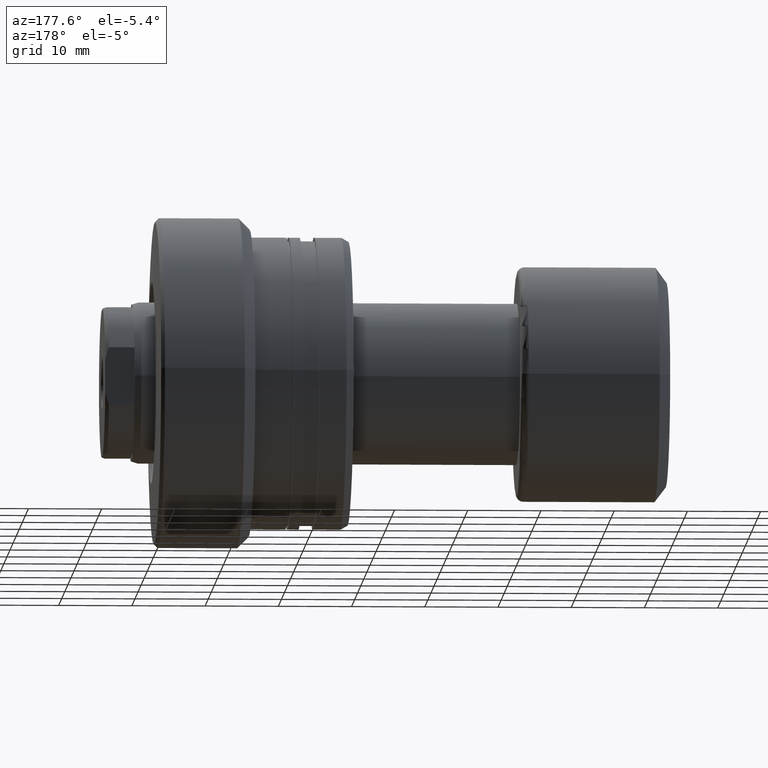
[diagram: clean part render]
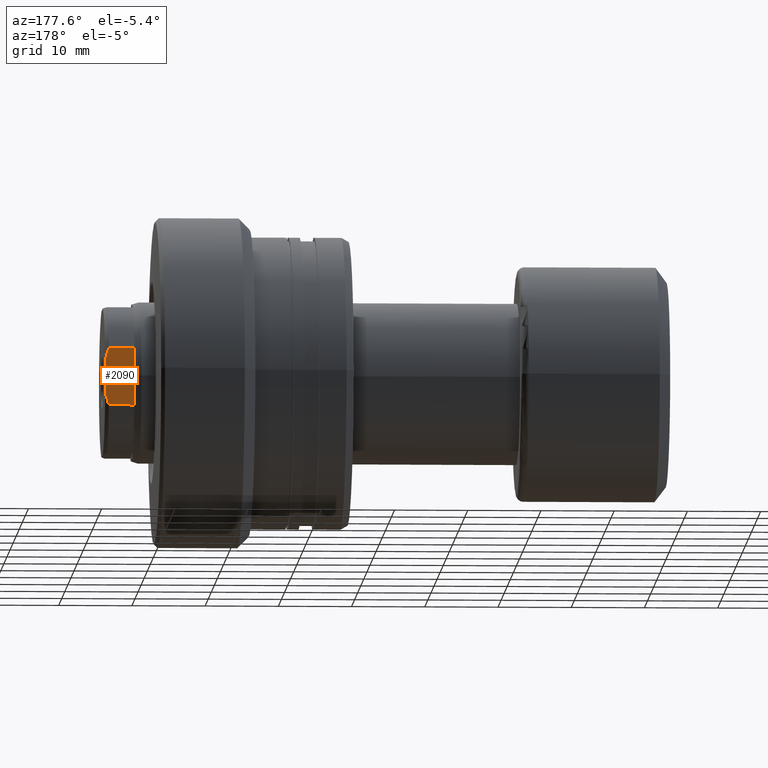
[diagram: same view with one face highlighted and labeled with its STEP entity id]
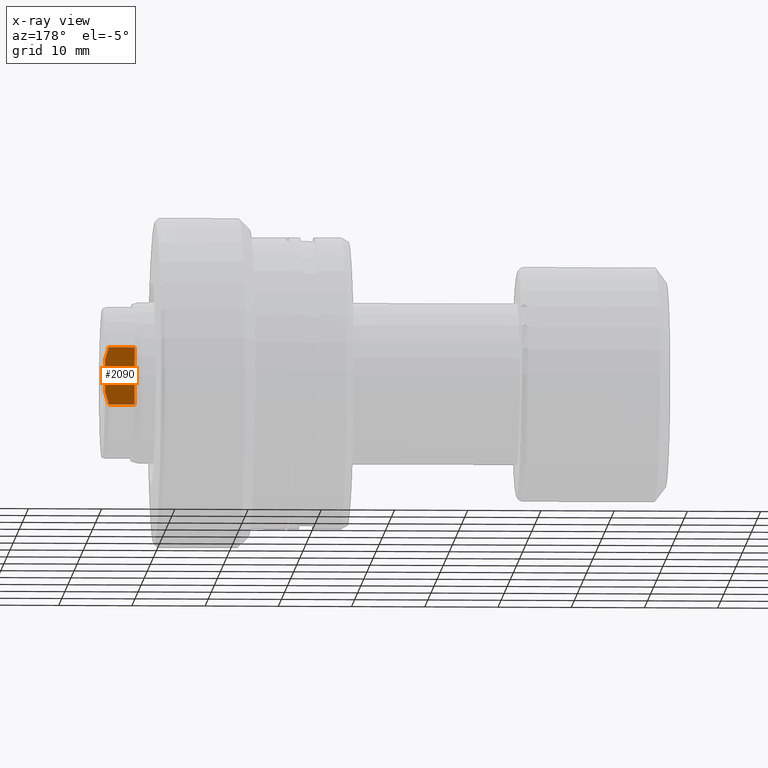
[diagram: x-ray of the same camera — body ghosted, the highlighted face saturated]
A machine part, auxiliary view. The second image highlights one B-rep face of the part: STEP entity #2090.
The next image is the same camera in x-ray: the body ghosted, the highlighted face saturated — about 0% of this face is hidden behind the body in this view.
In plain terms, the highlighted planar face has unit normal (-0, -1, -0).
Its self-contained STEP definition (entity closure, byte-faithful):
#37 = CARTESIAN_POINT ( 'NONE',  ( 76.70335817859835004, 9.999999999999824141, 3.390779519438168688 ) ) ;
#126 = ORIENTED_EDGE ( 'NONE', *, *, #608, .T. ) ;
#132 = CARTESIAN_POINT ( 'NONE',  ( 73.00000000000015632, 9.999999999998351541, -3.944933459517254271 ) ) ;
#162 = DIRECTION ( 'NONE',  ( 0.000000000000000000, 2.198672669360525686E-16, -1.000000000000000000 ) ) ;
#165 = EDGE_CURVE ( 'NONE', #607, #1852, #574, .T. ) ;
#184 = B_SPLINE_CURVE_WITH_KNOTS ( 'NONE', 3,
 ( #2215, #37, #1076, #1827 ),
 .UNSPECIFIED., .F., .F.,
 ( 4, 4 ),
 ( 2.500786051010437810E-16, 0.001767144428779326721 ),
 .UNSPECIFIED. ) ;
#208 = CARTESIAN_POINT ( 'NONE',  ( 73.00000000000015632, 9.999999999998788525, 3.944933459514878837 ) ) ;
#224 = CARTESIAN_POINT ( 'NONE',  ( 73.00000000000015632, 9.999999999999223732, 3.944933459515049368 ) ) ;
#286 = ORIENTED_EDGE ( 'NONE', *, *, #1017, .T. ) ;
#348 = VECTOR ( 'NONE', #2367, 1000.000000000000000 ) ;
#352 = VERTEX_POINT ( 'NONE', #2081 ) ;
#355 = EDGE_CURVE ( 'NONE', #352, #435, #1542, .T. ) ;
#365 = CARTESIAN_POINT ( 'NONE',  ( 77.00000000000017053, 9.999999999998722799, -2.250000000005570655 ) ) ;
#373 = FACE_OUTER_BOUND ( 'NONE', #521, .T. ) ;
#393 = LINE ( 'NONE', #1901, #1757 ) ;
#435 = VERTEX_POINT ( 'NONE', #2145 ) ;
#521 = EDGE_LOOP ( 'NONE', ( #286, #2218, #1547, #667, #2325, #126 ) ) ;
#543 = DIRECTION ( 'NONE',  ( 1.000000000000000000, -1.657264799492230625E-14, 0.000000000000000000 ) ) ;
#562 = CARTESIAN_POINT ( 'NONE',  ( 73.00000000000015632, 9.999999999998788525, 3.944933459514878837 ) ) ;
#573 = DIRECTION ( 'NONE',  ( 1.000000000000000000, -1.657264799492230625E-14, -0.000000000000000000 ) ) ;
#574 = LINE ( 'NONE', #208, #840 ) ;
#607 = VERTEX_POINT ( 'NONE', #224 ) ;
#608 = EDGE_CURVE ( 'NONE', #1359, #2398, #184, .T. ) ;
#667 = ORIENTED_EDGE ( 'NONE', *, *, #165, .F. ) ;
#668 = CARTESIAN_POINT ( 'NONE',  ( 77.00000000000000000, 9.999999999998721023, 2.250000000005536016 ) ) ;
#708 = LINE ( 'NONE', #132, #348 ) ;
#840 = VECTOR ( 'NONE', #162, 1000.000000000000000 ) ;
#940 = CARTESIAN_POINT ( 'NONE',  ( 76.49999999999998579, 9.999999999998294697, -3.944933459517254271 ) ) ;
#1017 = EDGE_CURVE ( 'NONE', #2398, #352, #2383, .T. ) ;
#1076 = CARTESIAN_POINT ( 'NONE',  ( 76.87338680022166670, 9.999999999998722799, 2.826793465660946580 ) ) ;
#1122 = PLANE ( 'NONE',  #1375 ) ;
#1359 = VERTEX_POINT ( 'NONE', #2083 ) ;
#1375 = AXIS2_PLACEMENT_3D ( 'NONE', #562, #1717, #543 ) ;
#1387 = EDGE_CURVE ( 'NONE', #607, #1359, #393, .T. ) ;
#1542 = B_SPLINE_CURVE_WITH_KNOTS ( 'NONE', 3,
 ( #365, #2066, #1878, #940 ),
 .UNSPECIFIED., .F., .F.,
 ( 4, 4 ),
 ( 4.760425431922276150E-17, 0.001767144428781149698 ),
 .UNSPECIFIED. ) ;
#1547 = ORIENTED_EDGE ( 'NONE', *, *, #1596, .F. ) ;
#1596 = EDGE_CURVE ( 'NONE', #1852, #435, #708, .T. ) ;
#1609 = DIRECTION ( 'NONE',  ( 0.000000000000000000, 2.198672669360525686E-16, -1.000000000000000000 ) ) ;
#1717 = DIRECTION ( 'NONE',  ( -1.657264799492230625E-14, -1.000000000000000000, -2.198672669360525933E-16 ) ) ;
#1757 = VECTOR ( 'NONE', #573, 1000.000000000000000 ) ;
#1827 = CARTESIAN_POINT ( 'NONE',  ( 77.00000000000000000, 9.999999999998721023, 2.250000000005536016 ) ) ;
#1852 = VERTEX_POINT ( 'NONE', #1946 ) ;
#1878 = CARTESIAN_POINT ( 'NONE',  ( 76.70335817859890426, 9.999999999998728129, -3.390779519439795386 ) ) ;
#1901 = CARTESIAN_POINT ( 'NONE',  ( 73.00000000000015632, 9.999999999999223732, 3.944933459515049368 ) ) ;
#1946 = CARTESIAN_POINT ( 'NONE',  ( 73.00000000000015632, 9.999999999998351541, -3.944933459517254271 ) ) ;
#2066 = CARTESIAN_POINT ( 'NONE',  ( 76.87338680022152460, 9.999999999998722799, -2.826793465661620708 ) ) ;
#2081 = CARTESIAN_POINT ( 'NONE',  ( 77.00000000000017053, 9.999999999998722799, -2.250000000005570655 ) ) ;
#2083 = CARTESIAN_POINT ( 'NONE',  ( 76.49999999999995737, 9.999999999999165112, 3.944933459515049368 ) ) ;
#2090 = ADVANCED_FACE ( 'NONE', ( #373 ), #1122, .F. ) ;
#2145 = CARTESIAN_POINT ( 'NONE',  ( 76.49999999999998579, 9.999999999998294697, -3.944933459517254271 ) ) ;
#2179 = CARTESIAN_POINT ( 'NONE',  ( 77.00000000000017053, 9.999999999998721023, 3.944933459514878837 ) ) ;
#2215 = CARTESIAN_POINT ( 'NONE',  ( 76.49999999999995737, 9.999999999999165112, 3.944933459515049368 ) ) ;
#2218 = ORIENTED_EDGE ( 'NONE', *, *, #355, .T. ) ;
#2325 = ORIENTED_EDGE ( 'NONE', *, *, #1387, .T. ) ;
#2356 = VECTOR ( 'NONE', #1609, 1000.000000000000000 ) ;
#2367 = DIRECTION ( 'NONE',  ( 1.000000000000000000, -1.657264799492230625E-14, -0.000000000000000000 ) ) ;
#2383 = LINE ( 'NONE', #2179, #2356 ) ;
#2398 = VERTEX_POINT ( 'NONE', #668 ) ;